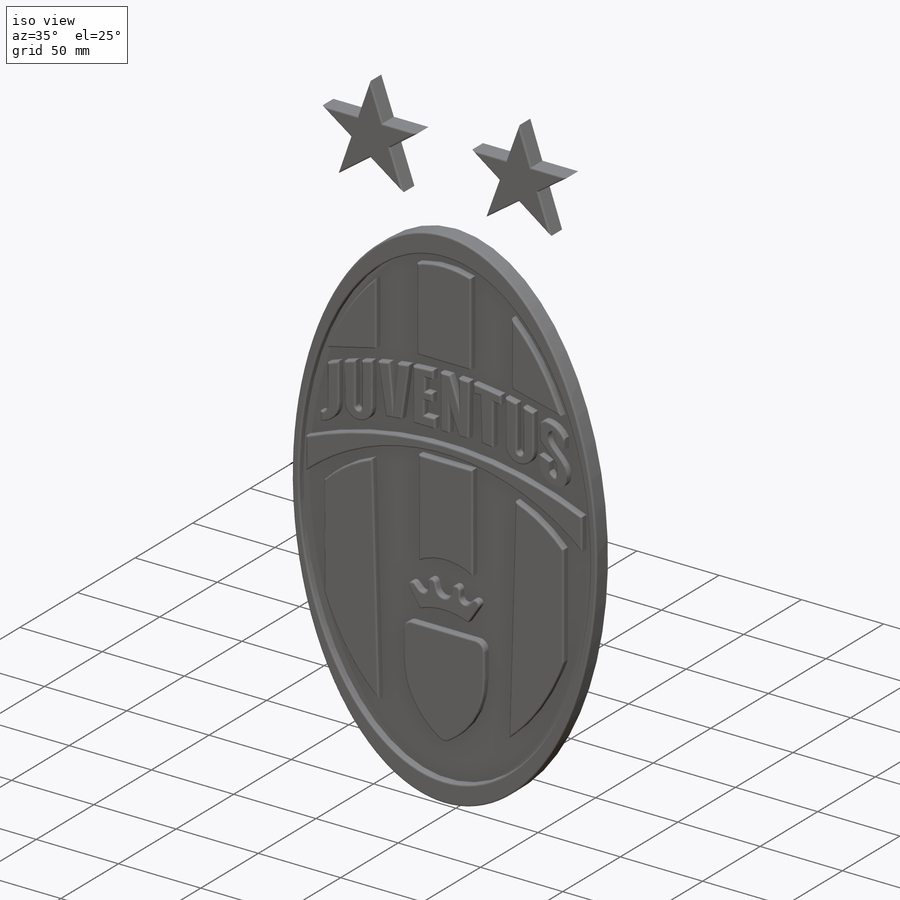
[diagram: iso view]
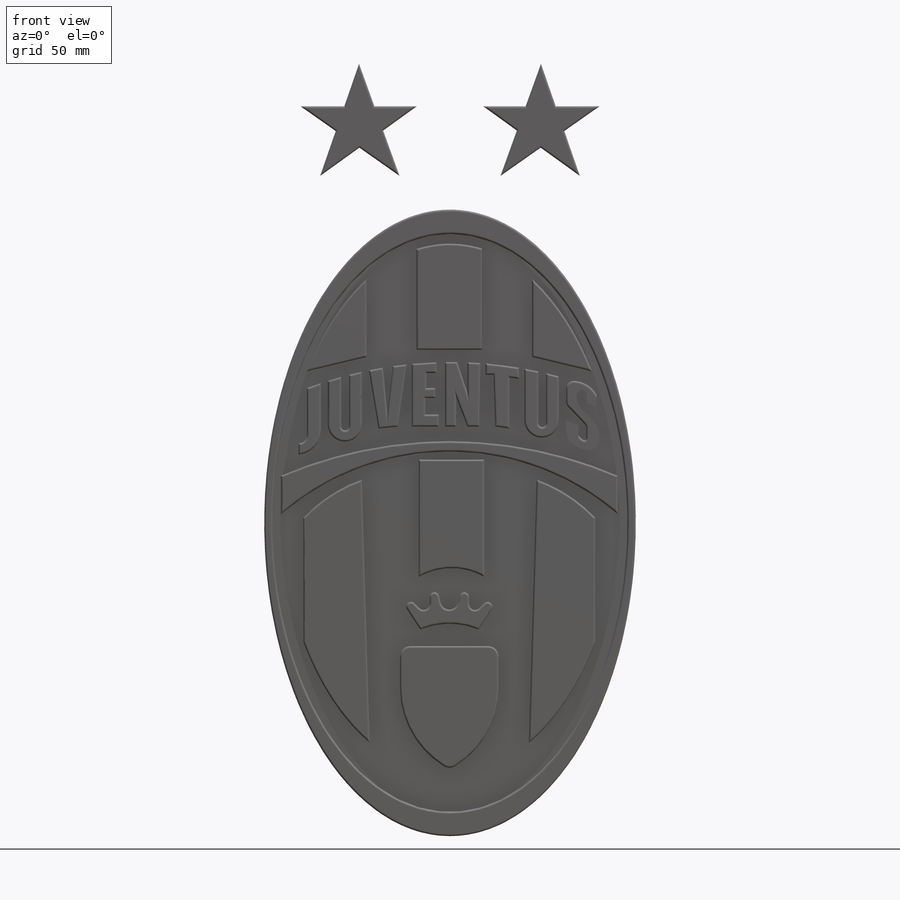
[diagram: front view]
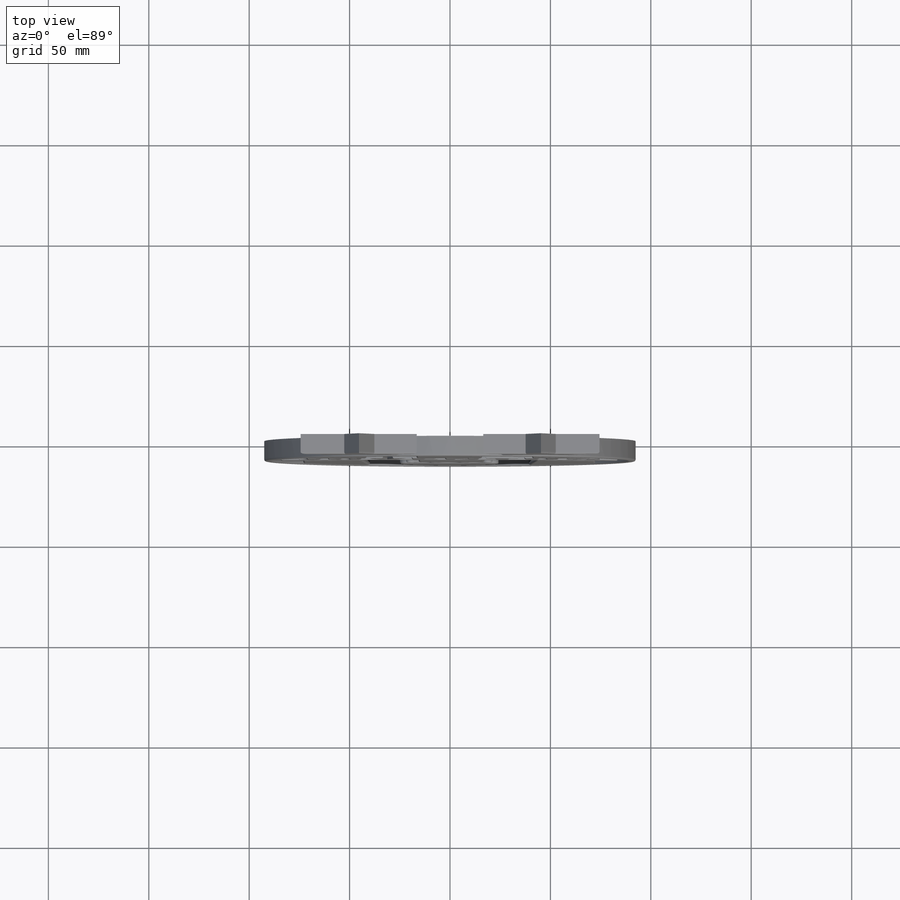
[diagram: top view]
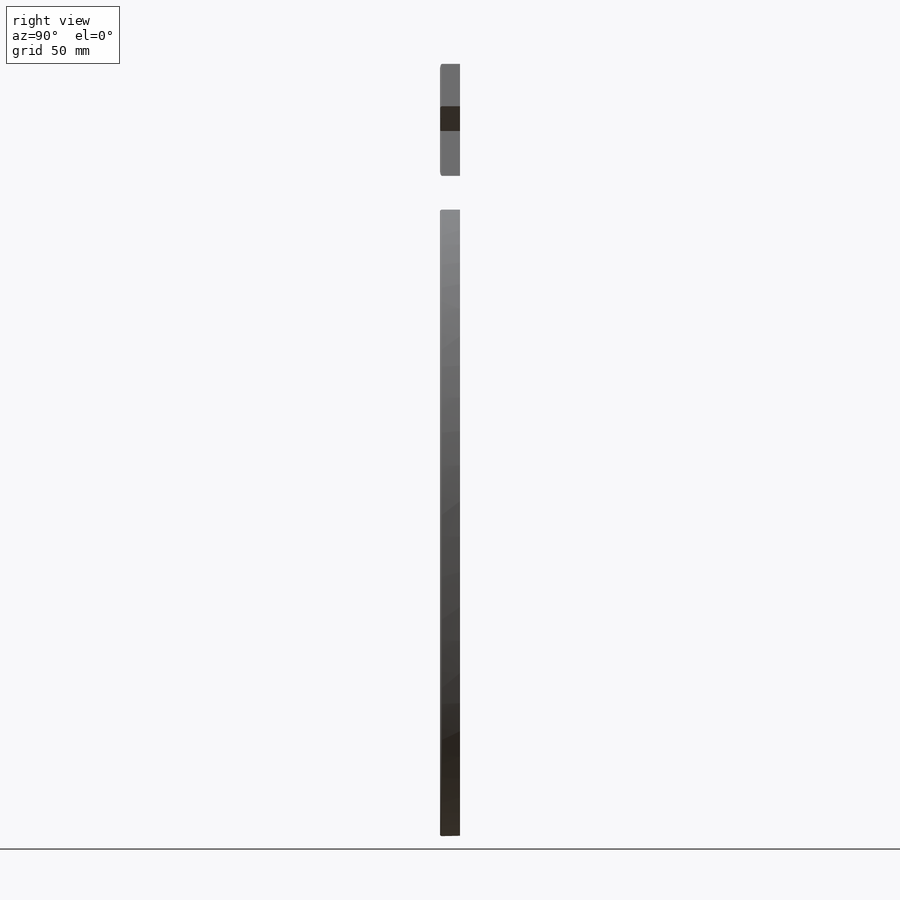
[diagram: right view]
SOLIDWORKS PART (.sldprt)
format: sldprt  version: not decoded by parser v0  size: 1,565,696 bytes
history: native  units: mm
features: fillet x20, sketch x8, extrude x6, material x1, cut_extrude x1 (+15 scaffold rows collapsed)
feature tree (51):
  scaffold x15  (default folders/planes/origin — collapsed)
  material  "ASTM A36 Steel"
  sketch  "Sketch1"
  sketch  "Sketch2"  dims[D1=185.0mm D2=312.0mm D3=400.0mm D4=300.0mm]
  extrude  "Boss-Extrude1"  Depth=10mm
  sketch  "Sketch3"  dims[D1=5.0mm]
  extrude  "Boss-Extrude2"  Depth=10mm
  sketch  "Sketch5"
  extrude  "Boss-Extrude3"  Depth=10mm
  sketch  "Sketch6"
  extrude  "Boss-Extrude4"  Depth=10mm
  fillet  "Fillet1"  Radius=1mm
  fillet  "Fillet2"  Radius=1mm
  fillet  "Fillet3"  Radius=1mm
  fillet  "Fillet4"  Radius=1mm
  fillet  "Fillet5"  Radius=1mm
  fillet  "Fillet6"  Radius=1mm
  fillet  "Fillet7"  Radius=1mm
  fillet  "Fillet8"  Radius=1mm
  fillet  "Fillet9"  Radius=1mm
  fillet  "Fillet10"  Radius=1mm
  fillet  "Fillet11"  Radius=1mm
  fillet  "Fillet12"  Radius=1mm
  fillet  "Fillet13"  Radius=1mm
  fillet  "Fillet14"  Radius=1mm
  fillet  "Fillet15"  Radius=1mm
  fillet  "Fillet16"  Radius=1mm
  fillet  "Fillet17"  Radius=1mm
  fillet  "Fillet18"  Radius=1mm
  fillet  "Fillet19"  Radius=1mm
  fillet  "Fillet21"  Radius=1mm
  sketch  "Sketch7"
  cut_extrude  "Cut-Extrude1"  Depth=5mm
  sketch  "Sketch8"
  extrude  "Boss-Extrude5"  Depth=2mm
  sketch  "Sketch9"
  extrude  "Boss-Extrude6"  Depth=4mm
decode coverage: 29 of 35 modeling features carry decoded parameters
note: suppression state not decoded; provenance and decode notes live in map.json
